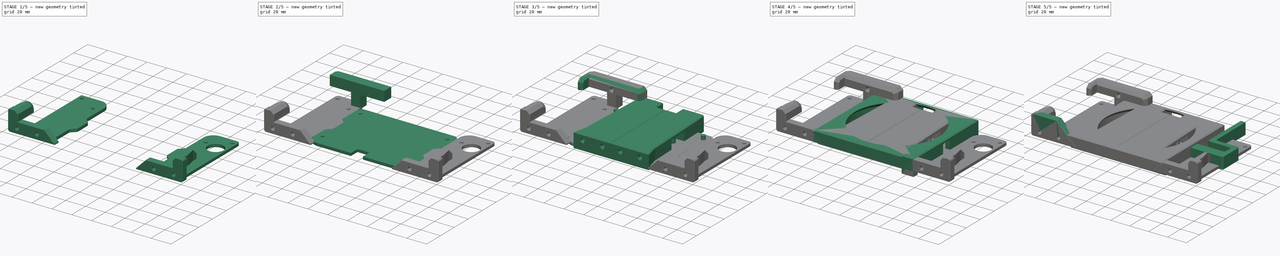
[diagram: build sequence overview — one tinted view per stage of 5, left to right]
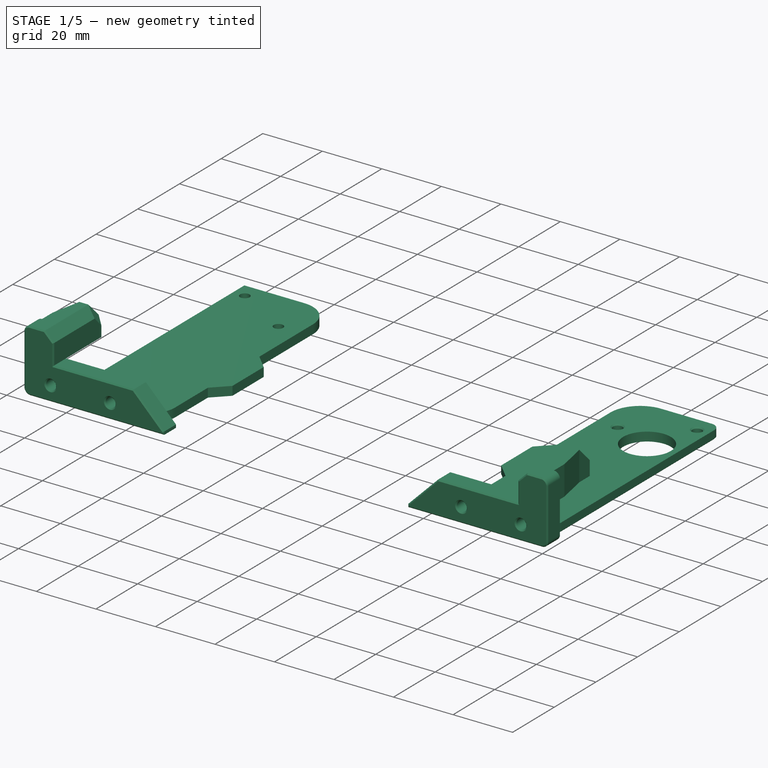
[diagram: stage 1 of 5 — iso view after this stage's code; geometry added in this stage tinted green]
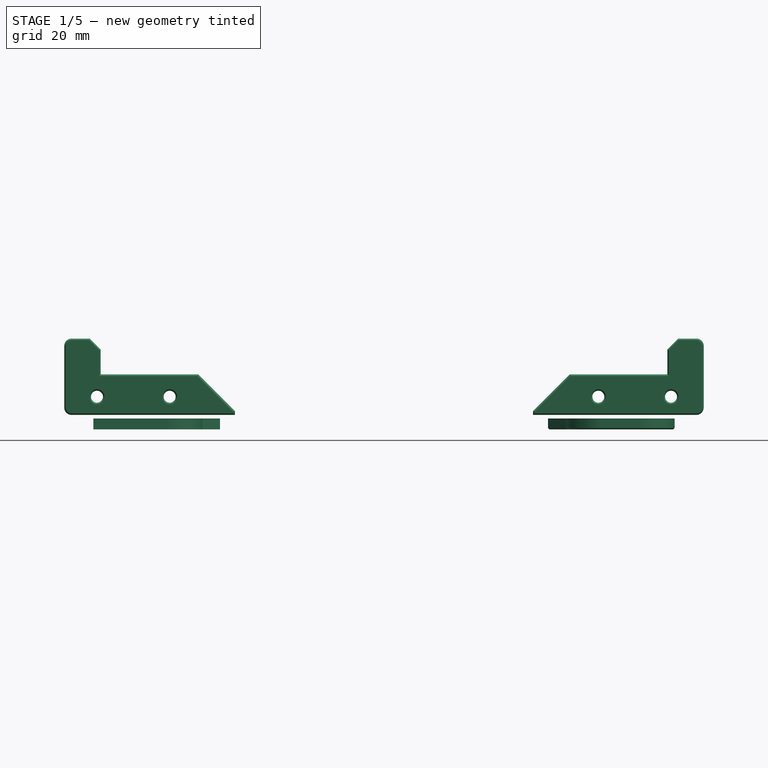
[diagram: stage 1 of 5 — front view after this stage's code; geometry added in this stage tinted green]
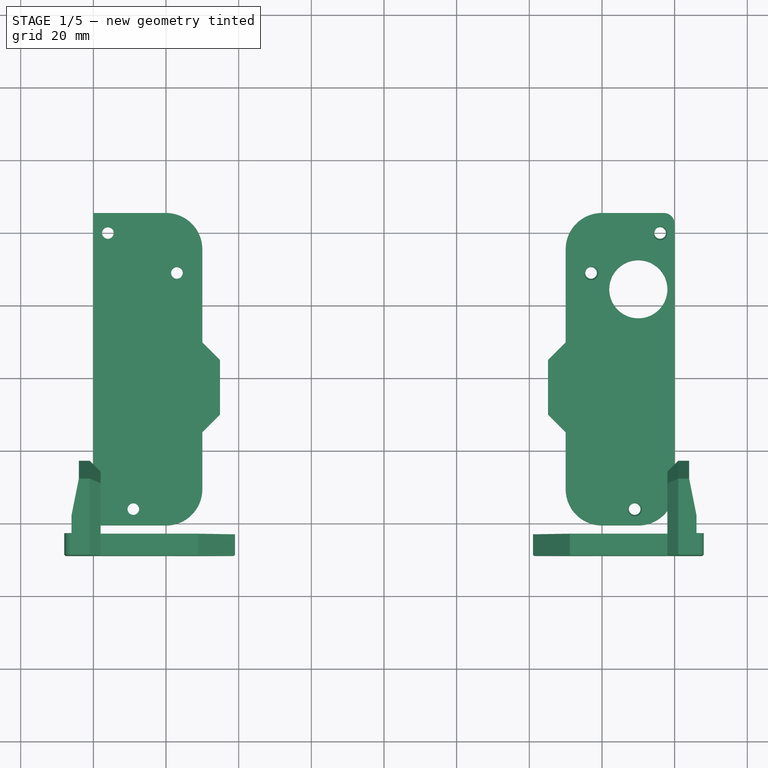
[diagram: stage 1 of 5 — top view after this stage's code; geometry added in this stage tinted green]
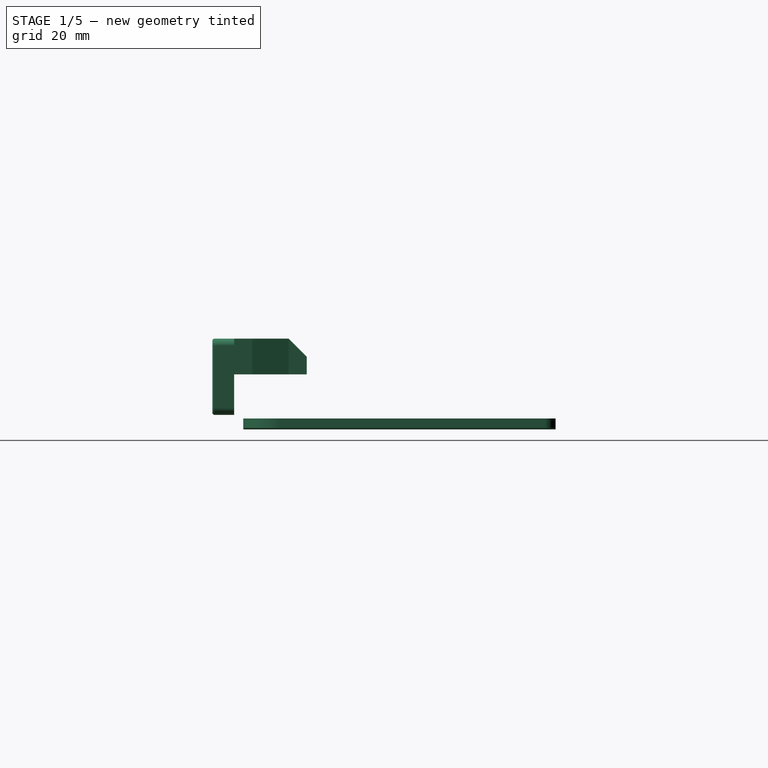
[diagram: stage 1 of 5 — right view after this stage's code; geometry added in this stage tinted green]
FCSTD DOCUMENT  (FreeCAD 0.19R24366 (Git))
Label: charger
License: Other
LicenseURL: GPL3
objects: Part::Box×34, Part::Chamfer×31, Part::Cylinder×21, Part::MultiFuse×17, Part::Cut×13, Sketcher::SketchObject×13, Part::Fillet×11, PartDesign::Pocket×11, PartDesign::Chamfer×6, PartDesign::Fillet×4, PartDesign::Body×3, PartDesign::Pad×2, Part::Feature×2, Part::MultiCommon×1, Spreadsheet::Sheet×1, PartDesign::FeatureBase×1, Part::Mirroring×1
note: 194 computed .brp shape members not serialized (recipe doc carries the construction recipe); baked Part::Feature solids carry a one-line shape summary decoded from their .brp

FEATURE [Part::Box] Box035  label="Cube035"
  AttacherType = Attacher::AttachEngine3D
  Height = 3
  Length = 30
  Placement = pos=(-80,-40.5,0) rot=(0,0,1;0rad)
  Width = 86
FEATURE [Part::Box] Box036  label="Cube036"
  AttacherType = Attacher::AttachEngine3D
  Height = 3
  Length = 30
  Placement = pos=(50,-40.5,0) rot=(0,0,1;0rad)
  Width = 86
FEATURE [Part::Cylinder] Cylinder018
  Angle = 360
  AttacherType = Attacher::AttachEngine3D
  Height = 10
  Placement = pos=(57,29,0) rot=(0,0,1;0rad)
  Radius = 1.6
FEATURE [Part::Cylinder] Cylinder019
  Angle = 360
  AttacherType = Attacher::AttachEngine3D
  Height = 10
  Placement = pos=(-57,29,0) rot=(0,0,1;0rad)
  Radius = 1.6
FEATURE [Part::Cylinder] Cylinder020
  Angle = 360
  AttacherType = Attacher::AttachEngine3D
  Height = 10
  Placement = pos=(-76,40,0) rot=(0,0,1;0rad)
  Radius = 1.6
FEATURE [Part::Cylinder] Cylinder021
  Angle = 360
  AttacherType = Attacher::AttachEngine3D
  Height = 10
  Placement = pos=(-69,-36,0) rot=(0,0,1;0rad)
  Radius = 1.6
FEATURE [Part::MultiFuse] Fusion002003013
  Shapes = -> [Cylinder021,Cylinder020,Cylinder019]
FEATURE [Part::Cut] Cut010
  Base = -> Box035
  Tool = -> Fusion002003013
FEATURE [Part::Cylinder] Cylinder022
  Angle = 360
  AttacherType = Attacher::AttachEngine3D
  Height = 10
  Placement = pos=(76,40,0) rot=(0,0,1;0rad)
  Radius = 1.6
FEATURE [Part::Cylinder] Cylinder023
  Angle = 360
  AttacherType = Attacher::AttachEngine3D
  Height = 10
  Placement = pos=(69,-36,0) rot=(0,0,1;0rad)
  Radius = 1.6
FEATURE [Part::MultiFuse] Fusion002003014
  Shapes = -> [Cylinder023,Cylinder022,Cylinder018]
FEATURE [Part::Cut] Cut011
  Base = -> Box036
  Refine = true
  Tool = -> Fusion002003014
FEATURE [Part::Box] Box037  label="Cube037"
  AttacherType = Attacher::AttachEngine3D
  Height = 3
  Length = 10
  Placement = pos=(-55.15,-14.85,0) rot=(0,0,1;0rad)
  Width = 24.7
FEATURE [Part::Box] Box038  label="Cube038"
  AttacherType = Attacher::AttachEngine3D
  Height = 3
  Length = 10
  Placement = pos=(45.15,-14.85,0) rot=(0,0,1;0rad)
  Width = 24.7
FEATURE [Part::Chamfer] Chamfer042
  Base = -> Box037
  Edges = 2 edges r=4.85: [Edge5,Edge7]
FEATURE [Part::MultiFuse] Fusion002003016
  Refine = true
  Shapes = -> [Cut010,Chamfer042]
FEATURE [Part::Chamfer] Chamfer043
  Base = -> Box038
  Edges = 2 edges r=4.85: [Edge1,Edge3]
FEATURE [Part::Fillet] Fillet007
  Base = -> Fusion002003016
  Edges = 2 edges r=10: [Edge6,Edge9]
FEATURE [Part::MultiFuse] Fusion002003017
  Refine = true
  Shapes = -> [Cut011,Chamfer043]
FEATURE [Part::Fillet] Fillet008
  Base = -> Fusion002003017
  Edges = 2 edges r=10: [Edge4,Edge15]
FEATURE [Part::Fillet] Fillet010
  Base = -> Fillet008
  Edges = 1 edges r=10: [Edge31]
FEATURE [Part::Fillet] Fillet012
  Base = -> Fillet010
  Edges = 1 edges r=3: [Edge23]
FEATURE [Part::Chamfer] Chamfer044
  Base = -> Fillet012
  Edges = 15 edges r=0.4: [Edge17,Edge19,Edge21,Edge23,Edge25,Edge27,Edge29,Edge32,Edge33,Edge35,Edge37,Edge39,Edge41,Edge43,Edge45]
FEATURE [Part::Chamfer] Chamfer047
  Base = -> Chamfer044
  Edges = 3 edges r=0.4: [Edge21,Edge22,Edge23]
FEATURE [Part::Cylinder] Cylinder024
  Angle = 360
  AttacherType = Attacher::AttachEngine3D
  Height = 10
  Placement = pos=(70,24.5,0) rot=(0,0,1;0rad)
  Radius = 8
FEATURE [Part::Cut] Cut013  label="right-drill"
  Base = -> Chamfer047
  Tool = -> Cylinder024
FEATURE [Part::Feature] Defeatured001  label="wing-cut-base"
  shape: bbox 47 x 26 x 21 mm, 20 faces (baked)
FEATURE [PartDesign::FeatureBase] BaseFeature
  BaseFeature = -> Defeatured001
FEATURE [Sketcher::SketchObject] Sketch012
  ExternalGeometry = -> [BaseFeature]
  FullyConstrained = true
  MapMode = 5
  Placement = pos=(0,-39,0) rot=(0,0.707107,0.707107;3.14159rad)
  Support = -> [BaseFeature]
  sketch-geometry (4):
    g0: LineSegment StartX=78 StartY=25 StartZ=0 EndX=51.15 EndY=25 EndZ=0
    g1: LineSegment StartX=51.15 StartY=25 StartZ=0 EndX=51.15 EndY=15.15 EndZ=0
    g2: LineSegment StartX=51.15 StartY=15.15 StartZ=0 EndX=78 EndY=15.15 EndZ=0
    g3: LineSegment StartX=78 StartY=15.15 StartZ=0 EndX=78 EndY=25 EndZ=0
  constraints (11):
    c: Coincident(g0,g1)
    c: Coincident(g1,g2)
    c: Coincident(g2,g3)
    c: Coincident(g3,g0)
    c: Horizontal(g0)
    c: Horizontal(g2)
    c: Vertical(g1)
    c: Vertical(g3)
    c: Coincident(g0,g-3)
    c: PointOnObject(g1,g-7)
    c: Horizontal(g-6,g1)
FEATURE [PartDesign::Pocket] Pocket010
  BaseFeature = -> BaseFeature
  Length = 5
  Length2 = 100
  Profile = -> Sketch012
  Refine = true
  Type = 1
FEATURE [PartDesign::Chamfer] Chamfer050
  Angle = 45
  Base = -> Pocket010 [Edge48,Edge36,Edge8]
  BaseFeature = -> Pocket010
  ChamferType = 0
  FlipDirection = false
  Size = 3
  Size2 = 1
  SupportTransform = false
FEATURE [PartDesign::Chamfer] Chamfer051
  Angle = 45
  Base = -> Chamfer050 [Face5]
  BaseFeature = -> Chamfer050
  ChamferType = 0
  FlipDirection = false
  Size = 0.4
  Size2 = 1
  SupportTransform = false
FEATURE [PartDesign::Body] Body002  label="wing-cut"
  BaseFeature = -> Defeatured001
  Group = -> [BaseFeature,Sketch012,Pocket010,Chamfer050,Chamfer051]
  Origin = -> Origin002
  Tip = -> Chamfer051
FEATURE [Part::Feature] Body002001  label="wing-cut001"
  shape: bbox 47 x 26 x 21 mm, 34 faces (baked)
FEATURE [Part::Mirroring] Part__Mirroring  label="wing-cut001 (Mirror #1)"
  Base = (0,0,0)
  Normal = (1,0,0)
  Source = -> Body002001
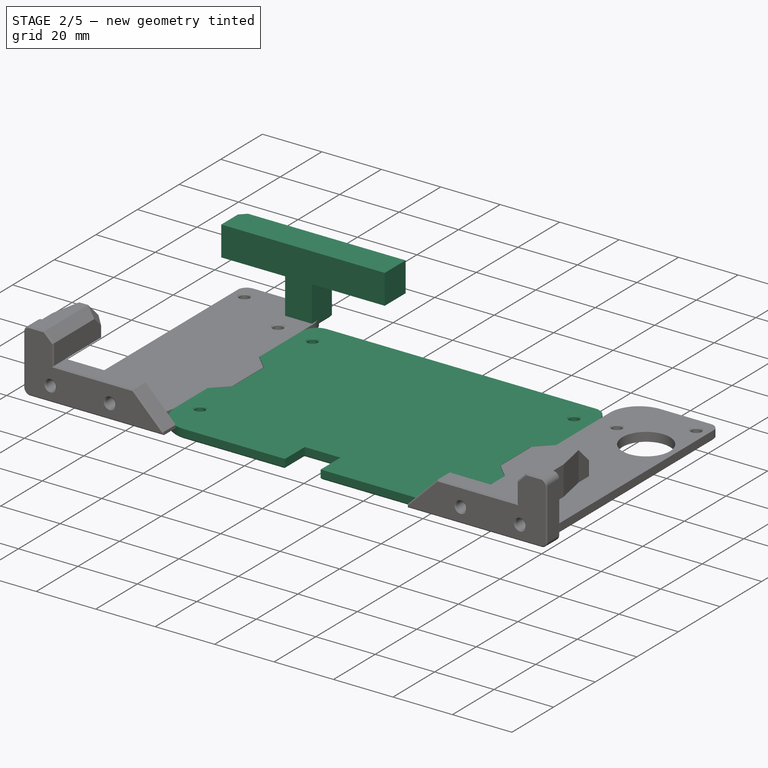
[diagram: stage 2 of 5 — iso view after this stage's code; geometry added in this stage tinted green]
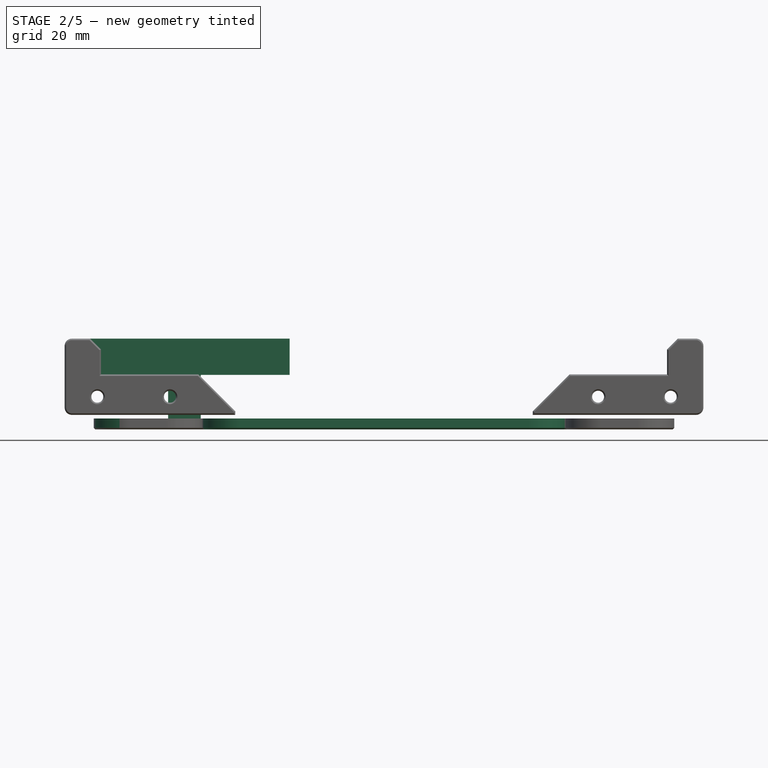
[diagram: stage 2 of 5 — front view after this stage's code; geometry added in this stage tinted green]
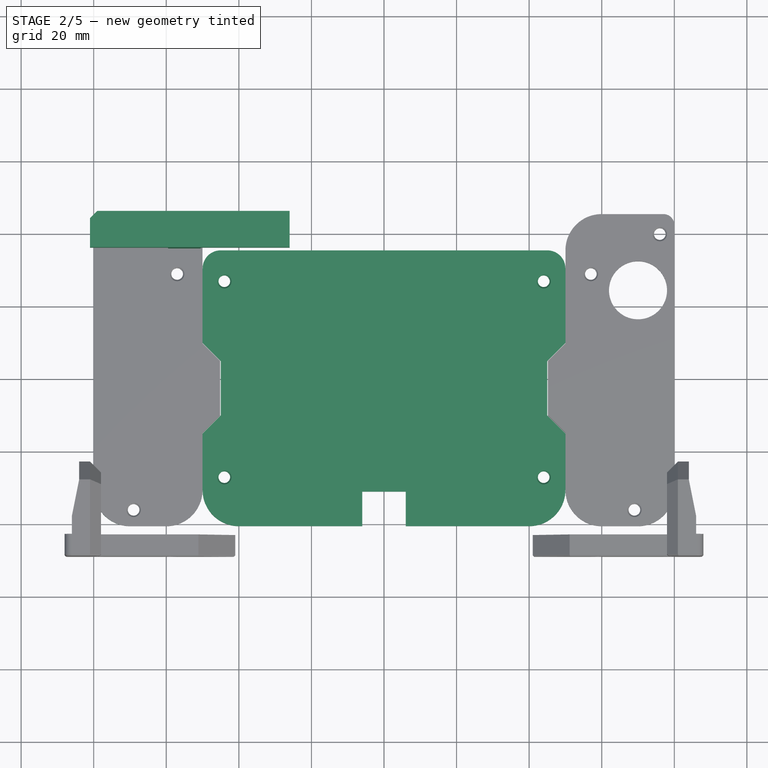
[diagram: stage 2 of 5 — top view after this stage's code; geometry added in this stage tinted green]
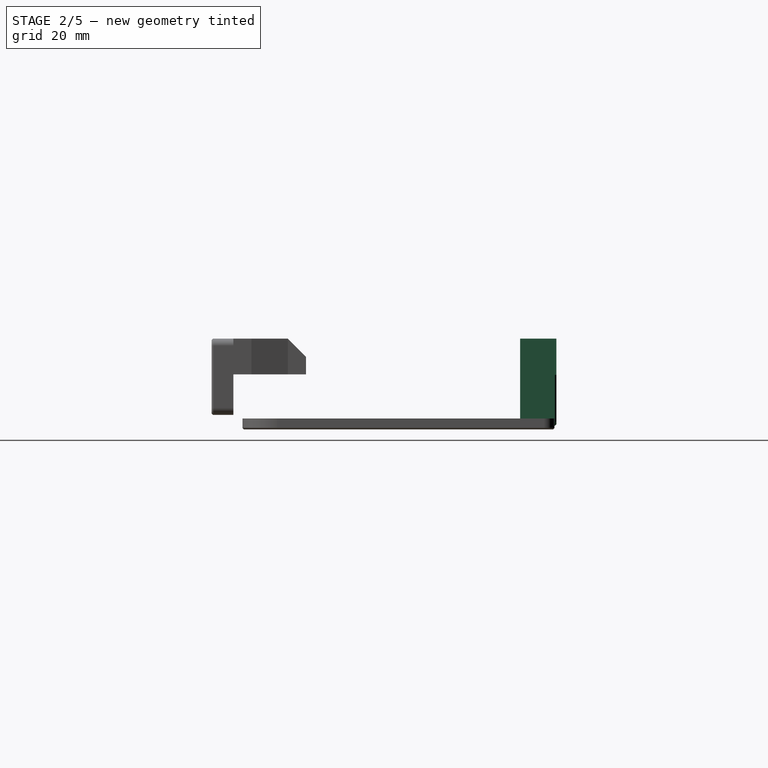
[diagram: stage 2 of 5 — right view after this stage's code; geometry added in this stage tinted green]
FEATURE [PartDesign::Body] Body001  label="right"
  Group = -> [Sketch001,Pad001,Fillet003,Chamfer007,Sketch003,Pocket001,Sketch004,Pocket002,Sketch006,Pocket004,Sketch008,Pocket006,Fillet005,Sketch009,Pocket007,Chamfer021,Sketch011,Pocket009,Fillet006]
  Origin = -> Origin001
  Placement = pos=(50,0,0) rot=(0,0,1;0rad)
  Tip = -> Fillet006
FEATURE [Part::Box] Box028  label="Cube028"
  AttacherType = Attacher::AttachEngine3D
  Height = 14
  Length = 9
  Placement = pos=(-59.5,36,1) rot=(0,0,1;0rad)
  Width = 10
FEATURE [Part::Box] Box030  label="Cube030"
  AttacherType = Attacher::AttachEngine3D
  Height = 10
  Length = 55
  Placement = pos=(-81,36,15) rot=(0,0,1;0rad)
  Width = 10
FEATURE [Part::Box] Box032  label="Cube032"
  AttacherType = Attacher::AttachEngine3D
  Height = 10
  Length = 3.5
  Placement = pos=(-57.5,37.5,0) rot=(0,0,1;0rad)
  Width = 6.5
FEATURE [Part::Chamfer] Chamfer035
  Base = -> Box030
  Edges = 1 edges r=2: [Edge3]
FEATURE [Part::Cut] Cut006
  Base = -> Box028
  Tool = -> Box032
FEATURE [Part::Chamfer] Chamfer038
  Base = -> Cut006
  Edges = 2 edges r=1: [Edge4,Edge12]
FEATURE [Part::Chamfer] Chamfer039
  Base = -> Chamfer038
  Edges = 9 edges r=0.4: [Edge3,Edge10,Edge14,Edge15,Edge16,Edge18,Edge19,Edge20,Edge21]
FEATURE [Part::Cylinder] Cylinder013
  Angle = 360
  AttacherType = Attacher::AttachEngine3D
  Height = 10
  Placement = pos=(-55,46,18) rot=(1,0,0;1.5708rad)
  Radius = 1.5
FEATURE [Part::Box] Box033  label="Cube033"
  AttacherType = Attacher::AttachEngine3D
  Height = 10
  Length = 12
  Placement = pos=(-6,-43,0) rot=(0,0,1;0rad)
  Width = 12
FEATURE [Part::Box] Box034  label="Cube034"
  AttacherType = Attacher::AttachEngine3D
  Height = 3
  Length = 100
  Placement = pos=(-50,-40.5,0) rot=(0,0,1;0rad)
  Width = 76
FEATURE [Part::Cut] Cut008
  Base = -> Box034
  Tool = -> Box033
FEATURE [Part::Cylinder] Cylinder014
  Angle = 360
  AttacherType = Attacher::AttachEngine3D
  Height = 10
  Placement = pos=(-44,-27,0) rot=(0,0,1;0rad)
  Radius = 1.6
FEATURE [Part::Cylinder] Cylinder015
  Angle = 360
  AttacherType = Attacher::AttachEngine3D
  Height = 10
  Placement = pos=(44,-27,0) rot=(0,0,1;0rad)
  Radius = 1.6
FEATURE [Part::Cylinder] Cylinder016
  Angle = 360
  AttacherType = Attacher::AttachEngine3D
  Height = 10
  Placement = pos=(44,27,0) rot=(0,0,1;0rad)
  Radius = 1.6
FEATURE [Part::Cylinder] Cylinder017
  Angle = 360
  AttacherType = Attacher::AttachEngine3D
  Height = 10
  Placement = pos=(-44,27,0) rot=(0,0,1;0rad)
  Radius = 1.6
FEATURE [Part::MultiFuse] Fusion002003012
  Shapes = -> [Cylinder017,Cylinder016,Cylinder015,Cylinder014]
FEATURE [Part::Cut] Cut009
  Base = -> Cut008
  Tool = -> Fusion002003012
FEATURE [Part::Box] Box039  label="Cube039"
  AttacherType = Attacher::AttachEngine3D
  Height = 3
  Length = 10
  Placement = pos=(45,-15,0) rot=(0,0,1;0rad)
  Width = 25
FEATURE [Part::Box] Box040  label="Cube040"
  AttacherType = Attacher::AttachEngine3D
  Height = 3
  Length = 10
  Placement = pos=(-55,-15,0) rot=(0,0,1;0rad)
  Width = 25
FEATURE [Part::MultiFuse] Fusion002003015
  Shapes = -> [Box040,Box039]
FEATURE [Part::Chamfer] Chamfer041
  Base = -> Fusion002003015
  Edges = 4 edges r=5: [Edge5,Edge7,Edge13,Edge15]
FEATURE [Part::Cut] Cut012
  Base = -> Cut009
  Tool = -> Chamfer041
FEATURE [Part::Fillet] Fillet009
  Base = -> Fillet007
  Edges = 1 edges r=10: [Edge2]
FEATURE [Part::Fillet] Fillet011
  Base = -> Fillet009
  Edges = 1 edges r=3: [Edge33]
FEATURE [Part::Fillet] Fillet013
  Base = -> Cut012
  Edges = 2 edges r=10: [Edge4,Edge50]
FEATURE [Part::Fillet] Fillet014
  Base = -> Fillet013
  Edges = 2 edges r=5: [Edge58,Edge60]
FEATURE [Part::Chamfer] Chamfer045
  Base = -> Fillet011
  Edges = 15 edges r=0.4: [Edge1,Edge2,Edge3,Edge4,Edge5,Edge6,Edge7,Edge8,Edge9,Edge10,Edge11,Edge12,Edge13,Edge14,Edge15]
FEATURE [Part::Chamfer] Chamfer046
  Base = -> Fillet014
  Edges = 24 edges r=0.4: [Edge26,Edge28,Edge30,Edge32,Edge35,Edge36,Edge38,Edge41,Edge43,Edge44,Edge46,Edge49,Edge50,Edge52,Edge55,Edge57,Edge59,Edge60,Edge63,Edge64,Edge66,Edge68,Edge70,Edge72]
FEATURE [Part::Chamfer] Chamfer048  label="centr-drill"
  Base = -> Chamfer046
  Edges = 4 edges r=0.4: [Edge29,Edge30,Edge31,Edge32]
FEATURE [Part::Chamfer] Chamfer049  label="left-drill"
  Base = -> Chamfer045
  Edges = 3 edges r=0.4: [Edge71,Edge73,Edge75]
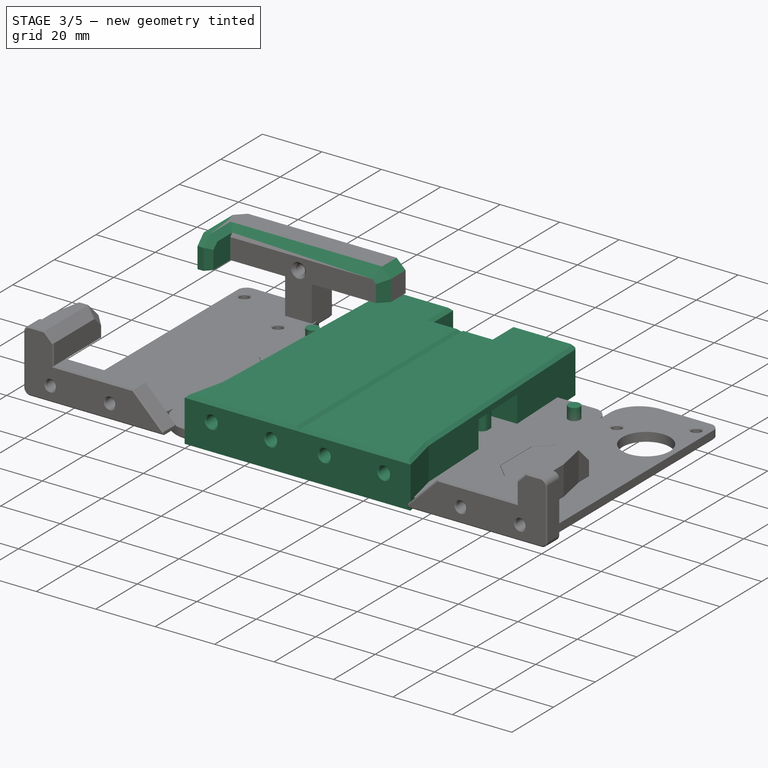
[diagram: stage 3 of 5 — iso view after this stage's code; geometry added in this stage tinted green]
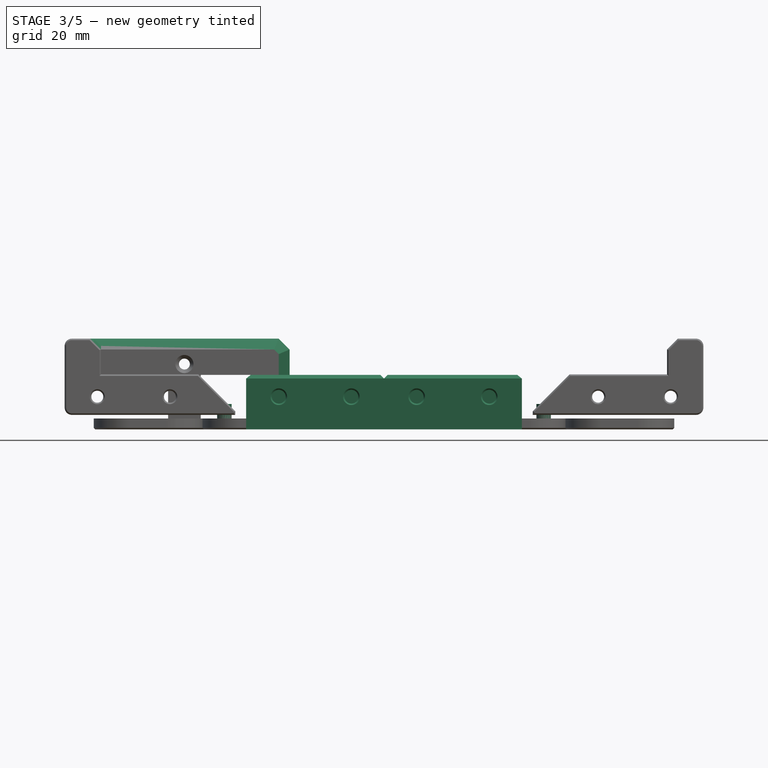
[diagram: stage 3 of 5 — front view after this stage's code; geometry added in this stage tinted green]
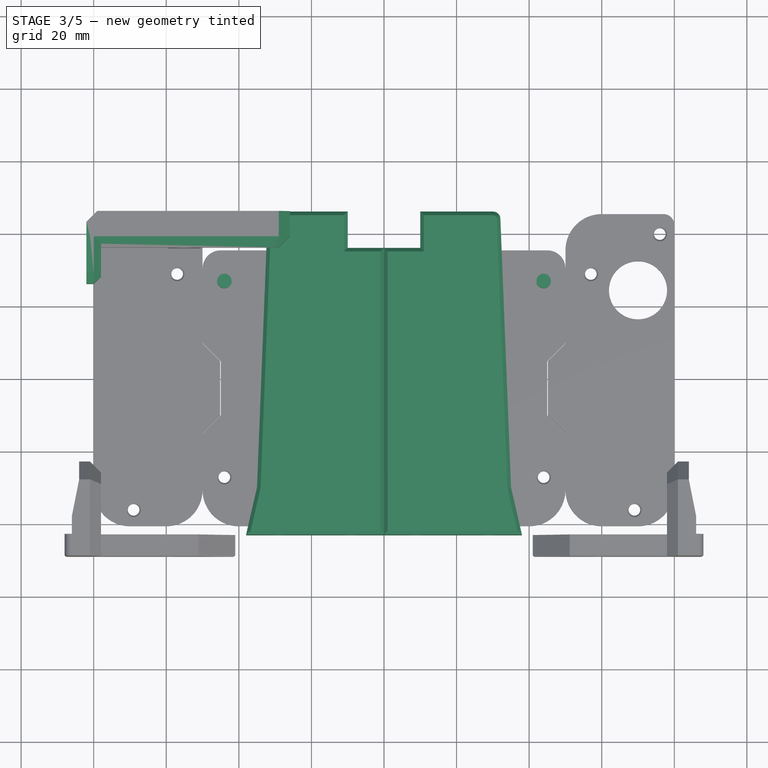
[diagram: stage 3 of 5 — top view after this stage's code; geometry added in this stage tinted green]
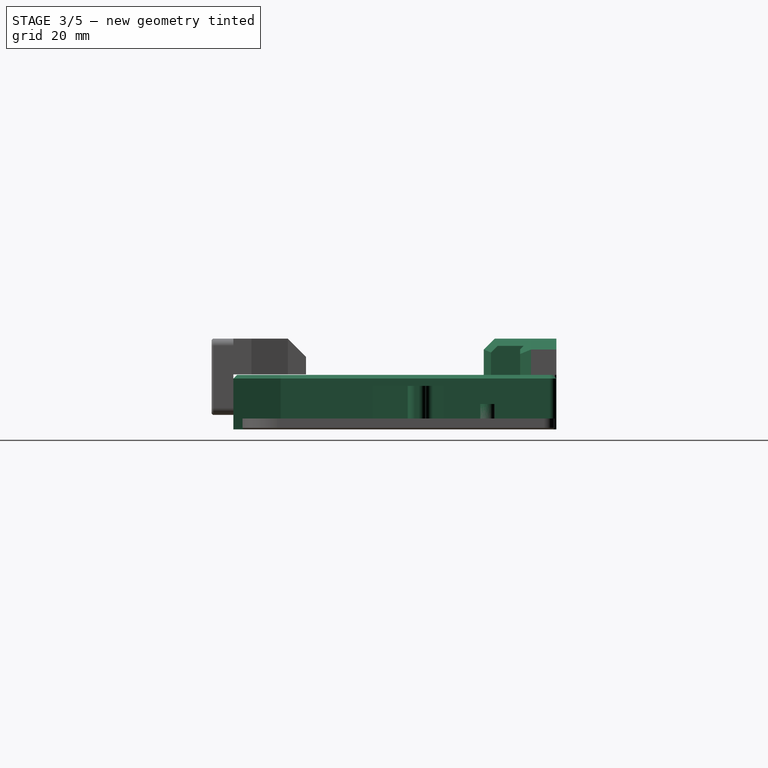
[diagram: stage 3 of 5 — right view after this stage's code; geometry added in this stage tinted green]
FEATURE [Sketcher::SketchObject] Sketch
  FullyConstrained = true
  MapMode = 5
  Support = -> [XY_Plane]
  sketch-geometry (8):
    g0: LineSegment StartX=0 StartY=36 StartZ=0 EndX=0 EndY=-43 EndZ=0
    g1: LineSegment StartX=0 StartY=-43 StartZ=0 EndX=-38 EndY=-43 EndZ=0
    g2: LineSegment StartX=0 StartY=-30 StartZ=0 EndX=-35 EndY=-30 EndZ=0
    g3: LineSegment StartX=-38 StartY=-43 StartZ=0 EndX=-35 EndY=-30 EndZ=0
    g4: LineSegment StartX=-35 StartY=-30 StartZ=0 EndX=-32 EndY=46 EndZ=0
    g5: LineSegment StartX=-32 StartY=46 StartZ=0 EndX=-10 EndY=46 EndZ=0
    g6: LineSegment StartX=-10 StartY=46 StartZ=0 EndX=-10 EndY=36 EndZ=0
    g7: LineSegment StartX=-10 StartY=36 StartZ=0 EndX=0 EndY=36 EndZ=0
  constraints (24):
    c: PointOnObject(g0,g-2)
    c: PointOnObject(g0,g-2)
    c: Coincident(g0,g1)
    c: Horizontal(g1)
    c: DistanceY(g-1,g0) = 36
    c: DistanceY(g0,g-1) = 43
    c: DistanceX(g4,g0) = 32
    c: DistanceX(g1,g1) = 38
    c: PointOnObject(g2,g0)
    c: Horizontal(g2)
    c: DistanceY(g0,g2) = 13
    c: Coincident(g3,g1)
    c: Coincident(g3,g2)
    c: Coincident(g4,g3)
    c: DistanceX(g3,g2) = 35
    c: Coincident(g5,g4)
    c: Horizontal(g5)
    c: Coincident(g6,g5)
    c: Vertical(g6)
    c: Coincident(g7,g6)
    c: Coincident(g7,g0)
    c: Horizontal(g7)
    c: DistanceX(g7,g7) = 10
    c: DistanceY(g6,g6) = 10
FEATURE [PartDesign::Pad] Pad
  Direction = (1,1,1)
  Length = 15
  Length2 = 100
  Profile = -> Sketch
  Type = 0
FEATURE [PartDesign::Fillet] Fillet002
  Base = -> Pad [Edge11]
  BaseFeature = -> Pad
  Radius = 2
  SupportTransform = false
FEATURE [PartDesign::Chamfer] Chamfer003
  Angle = 45
  Base = -> Fillet002 [Edge17,Edge4,Edge15,Edge19,Edge20,Edge18,Edge16,Edge13]
  BaseFeature = -> Fillet002
  ChamferType = 0
  FlipDirection = false
  Size = 1
  Size2 = 1
  SupportTransform = false
FEATURE [Sketcher::SketchObject] Sketch001
  FullyConstrained = true
  MapMode = 5
  Support = -> [XY_Plane001]
  sketch-geometry (7):
    g0: LineSegment StartX=0 StartY=36 StartZ=0 EndX=0 EndY=-43 EndZ=0
    g1: LineSegment StartX=0 StartY=-43 StartZ=0 EndX=38 EndY=-43 EndZ=0
    g2: LineSegment StartX=38 StartY=-43 StartZ=0 EndX=35 EndY=-30 EndZ=0
    g3: LineSegment StartX=35 StartY=-30 StartZ=0 EndX=32 EndY=46 EndZ=0
    g4: LineSegment StartX=32 StartY=46 StartZ=0 EndX=10 EndY=46 EndZ=0
    g5: LineSegment StartX=10 StartY=46 StartZ=0 EndX=10 EndY=36 EndZ=0
    g6: LineSegment StartX=10 StartY=36 StartZ=0 EndX=0 EndY=36 EndZ=0
  constraints (21):
    c: PointOnObject(g0,g-2)
    c: PointOnObject(g0,g-2)
    c: Coincident(g0,g1)
    c: Horizontal(g1)
    c: Coincident(g1,g2)
    c: Coincident(g2,g3)
    c: Coincident(g3,g4)
    c: Horizontal(g4)
    c: Coincident(g4,g5)
    c: Vertical(g5)
    c: Coincident(g5,g6)
    c: Coincident(g6,g0)
    c: Horizontal(g6)
    c: DistanceY(g-1,g0) = 36
    c: DistanceY(g0,g-1) = 43
    c: DistanceX(g1,g1) = 38
    c: DistanceX(g-1,g2) = 35
    c: DistanceY(g1,g2) = 13
    c: DistanceY(g5,g5) = 10
    c: DistanceX(g6,g6) = 10
    c: DistanceX(g-1,g3) = 32
FEATURE [PartDesign::Pad] Pad001
  Direction = (1,1,1)
  Length = 15
  Length2 = 100
  Profile = -> Sketch001
  Type = 0
FEATURE [PartDesign::Fillet] Fillet003
  Base = -> Pad001 [Edge11]
  BaseFeature = -> Pad001
  Radius = 2
  SupportTransform = false
FEATURE [PartDesign::Chamfer] Chamfer007
  Angle = 45
  Base = -> Fillet003 [Face5]
  BaseFeature = -> Fillet003
  ChamferType = 0
  FlipDirection = false
  Size = 1
  Size2 = 1
  SupportTransform = false
FEATURE [Sketcher::SketchObject] Sketch002
  FullyConstrained = true
  MapMode = 5
  Placement = pos=(0,-43,0) rot=(1,0,0;1.5708rad)
  Support = -> [Chamfer003]
  sketch-geometry (2):
    g0: Circle CenterX=-29 CenterY=9 CenterZ=0 NormalX=0 NormalY=0 NormalZ=1 AngleXU=0 Radius=1.9
    g1: Circle CenterX=-9 CenterY=9 CenterZ=0 NormalX=0 NormalY=0 NormalZ=1 AngleXU=0 Radius=1.9
  constraints (6):
    c: Radius(g0) = 1.9
    c: Radius(g1) = 1.9
    c: DistanceY(g-1,g1) = 9
    c: DistanceX(g1,g-1) = 9
    c: DistanceX(g0,g1) = 20
    c: Horizontal(g0,g1)
FEATURE [PartDesign::Pocket] Pocket
  BaseFeature = -> Chamfer003
  Length = 7
  Length2 = 100
  Profile = -> Sketch002
  Type = 0
FEATURE [Sketcher::SketchObject] Sketch003
  FullyConstrained = true
  MapMode = 5
  Placement = pos=(0,-43,0) rot=(1,0,0;1.5708rad)
  Support = -> [Chamfer007]
  sketch-geometry (2):
    g0: Circle CenterX=9 CenterY=9 CenterZ=0 NormalX=0 NormalY=0 NormalZ=1 AngleXU=0 Radius=1.9
    g1: Circle CenterX=29 CenterY=9 CenterZ=0 NormalX=0 NormalY=0 NormalZ=1 AngleXU=0 Radius=1.9
  constraints (6):
    c: Horizontal(g0,g1)
    c: DistanceX(g-1,g0) = 9
    c: DistanceX(g0,g1) = 20
    c: DistanceY(g-1,g0) = 9
    c: Radius(g0) = 1.9
    c: Radius(g1) = 1.9
FEATURE [PartDesign::Pocket] Pocket001
  BaseFeature = -> Chamfer007
  Length = 7
  Length2 = 100
  Profile = -> Sketch003
  Type = 0
FEATURE [Part::Cylinder] Cylinder011
  Angle = 360
  AttacherType = Attacher::AttachEngine3D
  Height = 7
  Placement = pos=(-44,27,0) rot=(0,0,1;0rad)
  Radius = 2
FEATURE [Part::Cylinder] Cylinder012
  Angle = 360
  AttacherType = Attacher::AttachEngine3D
  Height = 7
  Placement = pos=(44,27,0) rot=(0,0,1;0rad)
  Radius = 2
FEATURE [Sketcher::SketchObject] Sketch004
  FullyConstrained = true
  MapMode = 5
  Placement = pos=(0,0,0) rot=(1,0,0;3.14159rad)
  Support = -> [Pocket001]
  sketch-geometry (4):
    g0: LineSegment StartX=12 StartY=-44 StartZ=0 EndX=15.5 EndY=-44 EndZ=0
    g1: LineSegment StartX=15.5 StartY=-44 StartZ=0 EndX=15.5 EndY=-37.5 EndZ=0
    g2: LineSegment StartX=15.5 StartY=-37.5 StartZ=0 EndX=12 EndY=-37.5 EndZ=0
    g3: LineSegment StartX=12 StartY=-37.5 StartZ=0 EndX=12 EndY=-44 EndZ=0
  constraints (12):
    c: Coincident(g0,g1)
    c: Coincident(g1,g2)
    c: Coincident(g2,g3)
    c: Coincident(g3,g0)
    c: Horizontal(g0)
    c: Horizontal(g2)
    c: Vertical(g1)
    c: Vertical(g3)
    c: DistanceY(g3,g3) = 6.5
    c: DistanceX(g2,g2) = 3.5
    c: DistanceX(g-1,g0) = 12
    c: DistanceY(g2,g-1) = 37.5
FEATURE [PartDesign::Pocket] Pocket002
  BaseFeature = -> Pocket001
  Length = 10
  Length2 = 100
  Profile = -> Sketch004
  Type = 0
FEATURE [Sketcher::SketchObject] Sketch005
  FullyConstrained = true
  MapMode = 5
  Placement = pos=(0,0,0) rot=(1,0,0;3.14159rad)
  Support = -> [Pocket]
  sketch-geometry (4):
    g0: LineSegment StartX=-12.05 StartY=-44.08 StartZ=0 EndX=-15.55 EndY=-44.08 EndZ=0
    g1: LineSegment StartX=-15.55 StartY=-44.08 StartZ=0 EndX=-15.55 EndY=-37.58 EndZ=0
    g2: LineSegment StartX=-15.55 StartY=-37.58 StartZ=0 EndX=-12.05 EndY=-37.58 EndZ=0
    g3: LineSegment StartX=-12.05 StartY=-37.58 StartZ=0 EndX=-12.05 EndY=-44.08 EndZ=0
  constraints (12):
    c: Coincident(g0,g1)
    c: Coincident(g1,g2)
    c: Coincident(g2,g3)
    c: Coincident(g3,g0)
    c: Horizontal(g0)
    c: Horizontal(g2)
    c: Vertical(g1)
    c: Vertical(g3)
    c: DistanceY(g3,g3) = 6.5
    c: DistanceX(g2,g2) = 3.5
    c: DistanceX(g2,g-1) = 12.05
    c: DistanceY(g2,g-1) = 37.58
FEATURE [PartDesign::Pocket] Pocket003
  BaseFeature = -> Pocket
  Length = 10
  Length2 = 100
  Profile = -> Sketch005
  Type = 0
FEATURE [Sketcher::SketchObject] Sketch006
  FullyConstrained = true
  MapMode = 5
  Placement = pos=(0,0,0) rot=(1,0,0;3.14159rad)
  Support = -> [Pocket002]
  sketch-geometry (3):
    g0: Circle CenterX=19 CenterY=36 CenterZ=0 NormalX=0 NormalY=0 NormalZ=1 AngleXU=0 Radius=1.95
    g1: Circle CenterX=7 CenterY=-29 CenterZ=0 NormalX=0 NormalY=0 NormalZ=1 AngleXU=0 Radius=1.95
    g2: Circle CenterX=26 CenterY=-40 CenterZ=0 NormalX=0 NormalY=0 NormalZ=1 AngleXU=0 Radius=1.95
  constraints (9):
    c: Radius(g1) = 1.95
    c: Radius(g2) = 1.95
    c: Radius(g0) = 1.95
    c: DistanceX(g-1,g0) = 19
    c: DistanceX(g-1,g1) = 7
    c: DistanceX(g-1,g2) = 26
    c: DistanceY(g1,g-1) = 29
    c: DistanceY(g2,g-1) = 40
    c: DistanceY(g-1,g0) = 36
FEATURE [PartDesign::Pocket] Pocket004
  BaseFeature = -> Pocket002
  Length = 7
  Length2 = 100
  Profile = -> Sketch006
  Type = 0
FEATURE [Sketcher::SketchObject] Sketch007
  FullyConstrained = true
  MapMode = 5
  Placement = pos=(0,0,0) rot=(1,0,0;3.14159rad)
  Support = -> [Pocket003]
  sketch-geometry (3):
    g0: Circle CenterX=-19 CenterY=36 CenterZ=0 NormalX=0 NormalY=0 NormalZ=1 AngleXU=0 Radius=1.95
    g1: Circle CenterX=-26 CenterY=-40 CenterZ=0 NormalX=0 NormalY=0 NormalZ=1 AngleXU=0 Radius=1.95
    g2: Circle CenterX=-7 CenterY=-29 CenterZ=0 NormalX=0 NormalY=0 NormalZ=1 AngleXU=0 Radius=1.95
  constraints (9):
    c: Radius(g0) = 1.95
    c: Radius(g2) = 1.95
    c: Radius(g1) = 1.95
    c: DistanceX(g2,g-1) = 7
    c: DistanceX(g1,g-1) = 26
    c: DistanceX(g0,g-1) = 19
    c: DistanceY(g-1,g0) = 36
    c: DistanceY(g2,g-1) = 29
    c: DistanceY(g1,g-1) = 40
FEATURE [PartDesign::Pocket] Pocket005
  BaseFeature = -> Pocket003
  Length = 7
  Length2 = 100
  Profile = -> Sketch007
  Type = 0
FEATURE [Sketcher::SketchObject] Sketch008
  FullyConstrained = true
  MapMode = 5
  Placement = pos=(0,0,0) rot=(1,0,0;3.14159rad)
  Support = -> [Pocket004]
  sketch-geometry (10):
    g0: LineSegment StartX=0 StartY=5 StartZ=0 EndX=0 EndY=-5 EndZ=0
    g1: LineSegment StartX=0 StartY=5 StartZ=0 EndX=34 EndY=5 EndZ=0
    g2: LineSegment StartX=34 StartY=5 StartZ=0 EndX=34 EndY=-15 EndZ=0
    g3: LineSegment StartX=0 StartY=-5 StartZ=0 EndX=29 EndY=-5 EndZ=0
    g4: LineSegment StartX=29 StartY=-5 StartZ=0 EndX=29 EndY=-10 EndZ=0
    g5: LineSegment StartX=29 StartY=-10 StartZ=0 EndX=17.5 EndY=-10 EndZ=0
    g6: LineSegment StartX=34 StartY=-15 StartZ=0 EndX=22.5 EndY=-15 EndZ=0
    g7: LineSegment StartX=22.5 StartY=-15 StartZ=0 EndX=22.5 EndY=-17.0807 EndZ=0
    g8: LineSegment StartX=17.5 StartY=-10 StartZ=0 EndX=17.5 EndY=-17.0807 EndZ=0
    g9: ArcOfCircle CenterX=20 CenterY=-24.68 CenterZ=0 NormalX=0 NormalY=0 NormalZ=1 AngleXU=0 Radius=8 StartAngle=1.88862 EndAngle=7.53616
  constraints (31):
    c: PointOnObject(g0,g-2)
    c: Vertical(g0)
    c: Coincident(g1,g0)
    c: Horizontal(g1)
    c: Coincident(g2,g1)
    c: Vertical(g2)
    c: Coincident(g3,g0)
    c: Horizontal(g3)
    c: Coincident(g4,g3)
    c: Vertical(g4)
    c: Coincident(g5,g4)
    c: Horizontal(g5)
    c: Coincident(g6,g2)
    c: Horizontal(g6)
    c: Coincident(g7,g6)
    c: Vertical(g7)
    c: Coincident(g8,g5)
    c: DistanceY(g0,g0) = 10
    c: DistanceY(g-1,g0) = 5
    c: DistanceX(g1,g1) = 34
    c: DistanceX(g3,g3) = 29
    c: DistanceY(g2,g2) = 20
    c: DistanceY(g4,g4) = 5
    c: Radius(g9) = 8
    c: Vertical(g8)
    c: DistanceX(g0,g9) = 20
    c: DistanceY(g9,g0) = 19.68
    c: DistanceX(g8,g9) = 2.5
    c: DistanceX(g8,g7) = 5
    c: Coincident(g9,g8)
    c: Coincident(g9,g7)
FEATURE [PartDesign::Pocket] Pocket006
  BaseFeature = -> Pocket004
  Length = 12
  Length2 = 100
  Profile = -> Sketch008
  Type = 0
FEATURE [PartDesign::Fillet] Fillet005
  Base = -> Pocket006 [Edge75,Edge74,Edge73,Edge72,Edge32]
  BaseFeature = -> Pocket006
  Radius = 2
  SupportTransform = false
FEATURE [Sketcher::SketchObject] Sketch009
  FullyConstrained = true
  MapMode = 5
  Placement = pos=(0,0,0) rot=(1,0,0;3.14159rad)
  Support = -> [Fillet005]
  sketch-geometry (4):
    g0: LineSegment StartX=5 StartY=10 StartZ=0 EndX=29 EndY=10 EndZ=0
    g1: LineSegment StartX=29 StartY=10 StartZ=0 EndX=29 EndY=29 EndZ=0
    g2: LineSegment StartX=29 StartY=29 StartZ=0 EndX=5 EndY=29 EndZ=0
    g3: LineSegment StartX=5 StartY=29 StartZ=0 EndX=5 EndY=10 EndZ=0
  constraints (12):
    c: Coincident(g0,g1)
    c: Coincident(g1,g2)
    c: Coincident(g2,g3)
    c: Coincident(g3,g0)
    c: Horizontal(g0)
    c: Horizontal(g2)
    c: Vertical(g1)
    c: Vertical(g3)
    c: DistanceX(g2,g2) = 24
    c: DistanceX(g-1,g0) = 5
    c: DistanceY(g3,g3) = 19
    c: DistanceY(g-1,g0) = 10
FEATURE [PartDesign::Pocket] Pocket007
  BaseFeature = -> Fillet005
  Length = 10
  Length2 = 100
  Profile = -> Sketch009
  Type = 0
FEATURE [Sketcher::SketchObject] Sketch010
  FullyConstrained = true
  MapMode = 5
  Placement = pos=(0,0,0) rot=(1,0,0;3.14159rad)
  Support = -> [Pocket005]
  sketch-geometry (12):
    g0: LineSegment StartX=-5 StartY=29 StartZ=0 EndX=-29 EndY=29 EndZ=0
    g1: LineSegment StartX=-29 StartY=29 StartZ=0 EndX=-29 EndY=0 EndZ=0
    g2: LineSegment StartX=-29 StartY=0 StartZ=0 EndX=-5 EndY=0 EndZ=0
    g3: LineSegment StartX=-5 StartY=0 StartZ=0 EndX=-5 EndY=29 EndZ=0
    g4: LineSegment StartX=-5 StartY=-5 StartZ=0 EndX=-28 EndY=-5 EndZ=0
    g5: LineSegment StartX=-28 StartY=-5 StartZ=0 EndX=-28 EndY=-22 EndZ=0
    g6: LineSegment StartX=-28 StartY=-22 StartZ=0 EndX=-5 EndY=-22 EndZ=0
    g7: LineSegment StartX=-5 StartY=-22 StartZ=0 EndX=-5 EndY=-5 EndZ=0
    g8: LineSegment StartX=-14 StartY=-27 StartZ=0 EndX=-27 EndY=-27 EndZ=0
    g9: LineSegment StartX=-27 StartY=-27 StartZ=0 EndX=-27 EndY=-33 EndZ=0
    g10: LineSegment StartX=-27 StartY=-33 StartZ=0 EndX=-14 EndY=-33 EndZ=0
    g11: LineSegment StartX=-14 StartY=-33 StartZ=0 EndX=-14 EndY=-27 EndZ=0
  constraints (36):
    c: Coincident(g0,g1)
    c: Coincident(g1,g2)
    c: Coincident(g2,g3)
    c: Coincident(g3,g0)
    c: Horizontal(g0)
    c: Horizontal(g2)
    c: Vertical(g1)
    c: Vertical(g3)
    c: Coincident(g4,g5)
    c: Coincident(g5,g6)
    c: Coincident(g6,g7)
    c: Coincident(g7,g4)
    c: Horizontal(g4)
    c: Horizontal(g6)
    c: Vertical(g5)
    c: Vertical(g7)
    c: DistanceX(g2,g-1) = 5
    c: DistanceX(g4,g-1) = 5
    c: DistanceX(g0,g0) = 24
    c: DistanceY(g3,g3) = 29
    c: DistanceY(g2,g-1) = 0
    c: DistanceY(g4,g-1) = 5
    c: DistanceX(g4,g4) = 23
    c: DistanceY(g7,g7) = 17
    c: Coincident(g8,g9)
    c: Coincident(g9,g10)
    c: Coincident(g10,g11)
    c: Coincident(g11,g8)
    c: Horizontal(g8)
    c: Horizontal(g10)
    c: Vertical(g9)
    c: Vertical(g11)
    c: DistanceY(g8,g6) = 5
    c: DistanceX(g8,g8) = 13
    c: DistanceX(g8,g-1) = 14
    c: DistanceY(g11,g11) = 6
FEATURE [PartDesign::Pocket] Pocket008
  BaseFeature = -> Pocket005
  Length = 10
  Length2 = 100
  Profile = -> Sketch010
  Type = 0
FEATURE [PartDesign::Chamfer] Chamfer020
  Angle = 45
  Base = -> Pocket008 [Edge17,Edge35,Edge26,Edge30,Edge28,Edge27,Edge29,Edge52,Edge51]
  BaseFeature = -> Pocket008
  ChamferType = 0
  FlipDirection = false
  Size = 0.4
  Size2 = 1
  SupportTransform = false
FEATURE [PartDesign::Body] Body  label="left"
  Group = -> [Sketch,Pad,Fillet002,Chamfer003,Sketch002,Pocket,Sketch005,Pocket003,Sketch007,Pocket005,Sketch010,Pocket008,Chamfer020]
  Origin = -> Origin
  Placement = pos=(-50,0,0) rot=(0,0,1;0rad)
  Tip = -> Chamfer020
FEATURE [PartDesign::Chamfer] Chamfer021
  Angle = 45
  Base = -> Pocket007 [Edge61,Edge62,Edge63,Edge65,Edge64,Edge66,Edge74,Edge84,Edge85]
  BaseFeature = -> Pocket007
  ChamferType = 0
  FlipDirection = false
  Size = 0.4
  Size2 = 1
  SupportTransform = false
FEATURE [Sketcher::SketchObject] Sketch011
  FullyConstrained = true
  MapMode = 5
  Placement = pos=(0,0,0) rot=(1,0,0;3.14159rad)
  Support = -> [Chamfer021]
  sketch-geometry (4):
    g0: LineSegment StartX=3 StartY=-10 StartZ=0 EndX=14 EndY=-10 EndZ=0
    g1: LineSegment StartX=14 StartY=-10 StartZ=0 EndX=14 EndY=10 EndZ=0
    g2: LineSegment StartX=14 StartY=10 StartZ=0 EndX=3 EndY=10 EndZ=0
    g3: LineSegment StartX=3 StartY=10 StartZ=0 EndX=3 EndY=-10 EndZ=0
  constraints (12):
    c: Coincident(g0,g1)
    c: Coincident(g1,g2)
    c: Coincident(g2,g3)
    c: Coincident(g3,g0)
    c: Horizontal(g0)
    c: Horizontal(g2)
    c: Vertical(g1)
    c: Vertical(g3)
    c: DistanceX(g2,g2) = 11
    c: DistanceX(g-1,g2) = 3
    c: DistanceY(g1,g1) = 20
    c: DistanceY(g-1,g2) = 10
FEATURE [PartDesign::Pocket] Pocket009
  BaseFeature = -> Chamfer021
  Length = 0.75
  Length2 = 100
  Profile = -> Sketch011
  Type = 0
FEATURE [PartDesign::Fillet] Fillet006
  Base = -> Pocket009 [Edge51,Edge97]
  BaseFeature = -> Pocket009
  Radius = 2
  SupportTransform = false
FEATURE [Part::Box] Box031  label="Cube031"
  AttacherType = Attacher::AttachEngine3D
  Height = 10
  Length = 4
  Placement = pos=(-82,26,15) rot=(0,0,1;0rad)
  Width = 18
FEATURE [Part::Chamfer] Chamfer031
  Base = -> Box031
  Edges = 1 edges r=1: [Edge3]
FEATURE [Part::Chamfer] Chamfer032
  Base = -> Chamfer031
  Edges = 1 edges r=3: [Edge5]
FEATURE [Part::Chamfer] Chamfer033
  Base = -> Chamfer032
  Edges = 3 edges r=2: [Edge7,Edge10,Edge14]
FEATURE [Part::Chamfer] Chamfer036
  Base = -> Chamfer035
  Edges = 1 edges r=3: [Edge6]
FEATURE [Part::Chamfer] Chamfer037
  Base = -> Chamfer036
  Edges = 3 edges r=3: [Edge1,Edge6,Edge9]
FEATURE [Part::MultiFuse] Fusion002003011
  Shapes = -> [Chamfer039,Chamfer037,Chamfer033]
FEATURE [Part::Cut] Cut007
  Base = -> Fusion002003011
  Tool = -> Cylinder013
FEATURE [Part::Chamfer] Chamfer040
  Base = -> Cut007
  Edges = 1 edges r=1: [Edge36]
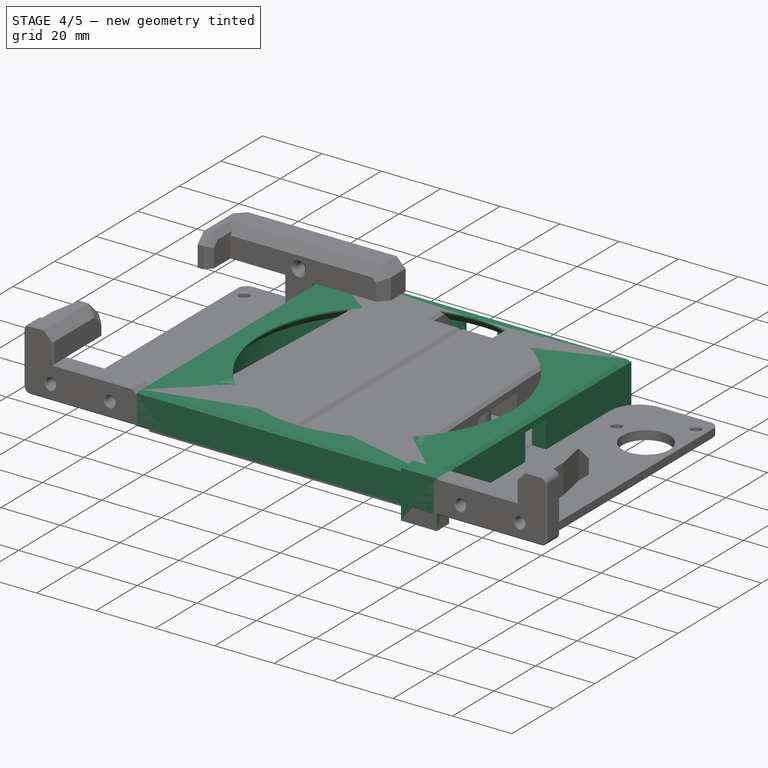
[diagram: stage 4 of 5 — iso view after this stage's code; geometry added in this stage tinted green]
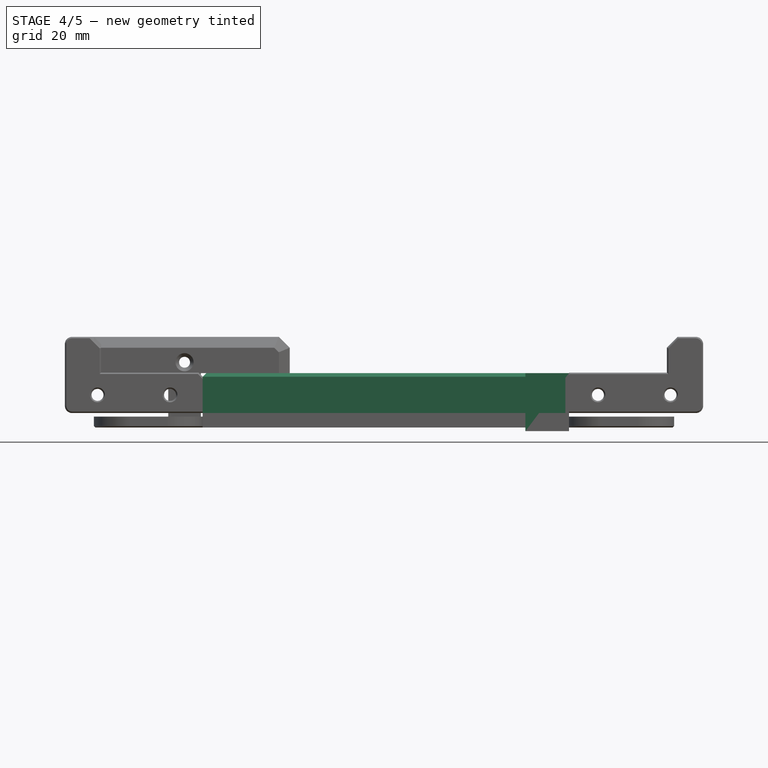
[diagram: stage 4 of 5 — front view after this stage's code; geometry added in this stage tinted green]
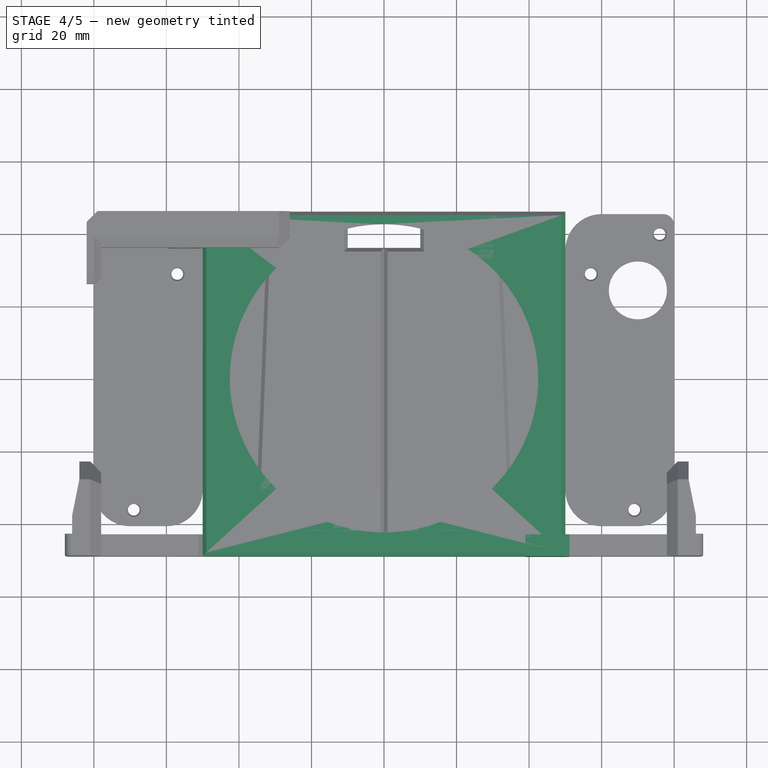
[diagram: stage 4 of 5 — top view after this stage's code; geometry added in this stage tinted green]
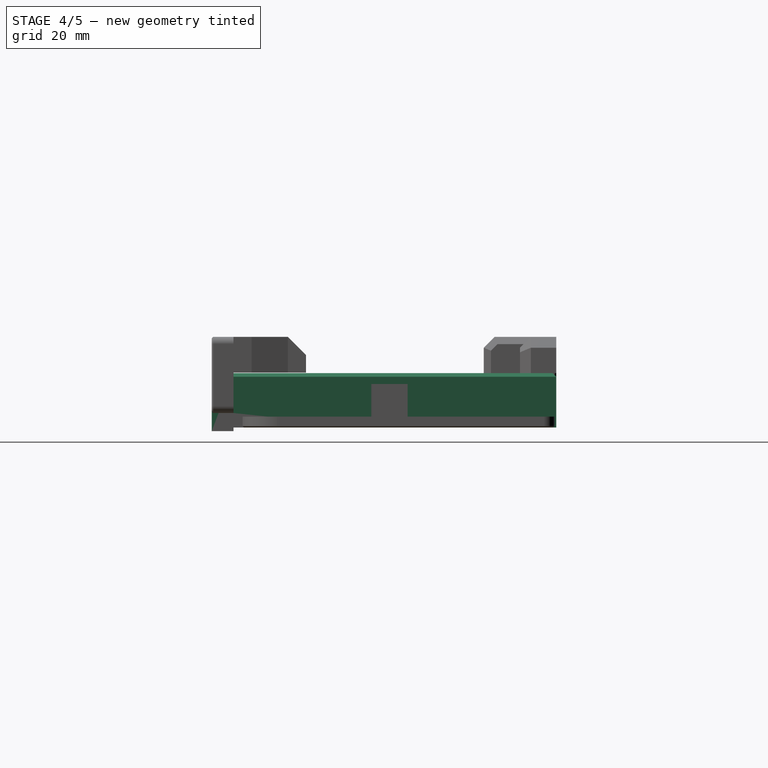
[diagram: stage 4 of 5 — right view after this stage's code; geometry added in this stage tinted green]
FEATURE [Part::Cylinder] Cylinder
  Angle = 360
  AttacherType = Attacher::AttachEngine3D
  Height = 15
  Radius = 45.5
FEATURE [Part::Cylinder] Cylinder002
  Angle = 360
  AttacherType = Attacher::AttachEngine3D
  Height = 21
  Radius = 42.5
FEATURE [Part::Chamfer] Chamfer
  Base = -> Cylinder
  Edges = 1 edges r=3.5: [Edge1]
FEATURE [Part::Cylinder] Cylinder004
  Angle = 360
  AttacherType = Attacher::AttachEngine3D
  Height = 15
  Radius = 46
FEATURE [Part::Box] Box  label="Cube"
  AttacherType = Attacher::AttachEngine3D
  Height = 0.75
  Length = 11
  Placement = pos=(-5.5,40,0) rot=(0,0,1;0rad)
  Width = 15
FEATURE [Part::Box] Box001  label="Cube001"
  AttacherType = Attacher::AttachEngine3D
  Height = 0.75
  Length = 11
  Placement = pos=(-5.5,-55,0) rot=(0,0,1;0rad)
  Width = 15
FEATURE [Part::Box] Box002  label="Cube002"
  AttacherType = Attacher::AttachEngine3D
  Height = 0.75
  Length = 15
  Placement = pos=(40,-5.5,0) rot=(0,0,1;0rad)
  Width = 11
FEATURE [Part::Box] Box003  label="Cube003"
  AttacherType = Attacher::AttachEngine3D
  Height = 0.75
  Length = 15
  Placement = pos=(-55,-5.5,0) rot=(0,0,1;0rad)
  Width = 11
FEATURE [Part::Box] Box004  label="Cube004"
  AttacherType = Attacher::AttachEngine3D
  Height = 11.5
  Length = 10
  Placement = pos=(-50,-5.5,0) rot=(0,0,1;0rad)
  Width = 11
FEATURE [Part::Box] Box005  label="Cube005"
  AttacherType = Attacher::AttachEngine3D
  Height = 11.5
  Length = 10
  Placement = pos=(40,-5.5,0) rot=(0,0,1;0rad)
  Width = 11
FEATURE [Part::Box] Box006  label="Cube006"
  AttacherType = Attacher::AttachEngine3D
  Height = 11.5
  Length = 11
  Placement = pos=(-5.5,-50,0) rot=(0,0,1;0rad)
  Width = 10
FEATURE [Part::Box] Box007  label="Cube007"
  AttacherType = Attacher::AttachEngine3D
  Height = 11.5
  Length = 11
  Placement = pos=(-5.5,40,0) rot=(0,0,1;0rad)
  Width = 10
FEATURE [Part::MultiFuse] Fusion002003
  Placement = pos=(0,0,0) rot=(0,0,-1;0.785398rad)
  Shapes = -> [Box003,Box,Box001,Box002]
FEATURE [Part::MultiFuse] Fusion002004
  Shapes = -> [Box007,Box004,Box005,Box006]
FEATURE [Part::MultiCommon] Common
  Placement = pos=(0,0,0) rot=(0,0,-1;0.785398rad)
  Shapes = -> [Cylinder004,Fusion002004]
FEATURE [Part::Box] Box015  label="Cube015"
  AttacherType = Attacher::AttachEngine3D
  Height = 15
  Length = 100
  Placement = pos=(-50,-43,0) rot=(0,0,1;0rad)
  Width = 89
FEATURE [Part::Box] Box016  label="Cube016"
  AttacherType = Attacher::AttachEngine3D
  Height = 11
  Length = 100
  Placement = pos=(-50,-49,4) rot=(0,0,1;0rad)
  Width = 6
FEATURE [Spreadsheet::Sheet] Spreadsheet  label="args"
FEATURE [Part::MultiFuse] Fusion002003004
  Refine = true
  Shapes = -> [Box015,Box016]
FEATURE [Part::MultiFuse] Fusion
  Shapes = -> [Fusion002003,Common,Chamfer,Cylinder002]
FEATURE [Part::Fillet] Fillet
  Base = -> Fusion
  Edges = 5 edges r=2: [Edge57,Edge59,Edge73,Edge85,Edge96]
FEATURE [Part::Cut] Cut
  Base = -> Fusion002003004
  Tool = -> Fillet
FEATURE [Part::Box] Box017  label="Cube017"
  AttacherType = Attacher::AttachEngine3D
  Height = 11.5
  Length = 11
  Placement = pos=(-5.5,40,0) rot=(0,0,1;0rad)
  Width = 10
FEATURE [Part::Box] Box018  label="Cube018"
  AttacherType = Attacher::AttachEngine3D
  Height = 12
  Length = 17
  Placement = pos=(40,-5,0) rot=(0,0,1;0rad)
  Width = 10
FEATURE [Part::MultiFuse] Fusion002003005
  Shapes = -> [Box017,Box018]
FEATURE [Part::Cut] Cut001
  Base = -> Cut
  Tool = -> Fusion002003005
FEATURE [Part::Box] Box021  label="Cube021"
  AttacherType = Attacher::AttachEngine3D
  Height = 16
  Length = 12
  Placement = pos=(39,-49,-1) rot=(0,0,1;0rad)
  Width = 6
FEATURE [Part::Chamfer] Chamfer006
  Base = -> Cut001
  Edges = 4 edges r=1: [Edge7,Edge43,Edge48,Edge49]
FEATURE [Part::Cylinder] Cylinder009
  Angle = 360
  AttacherType = Attacher::AttachEngine3D
  Height = 7
  Placement = pos=(44,-27,0) rot=(0,0,1;0rad)
  Radius = 2
FEATURE [Part::Cylinder] Cylinder010
  Angle = 360
  AttacherType = Attacher::AttachEngine3D
  Height = 7
  Placement = pos=(-44,-27,0) rot=(0,0,1;0rad)
  Radius = 2
FEATURE [Part::MultiFuse] Fusion002003010
  Shapes = -> [Cylinder012,Cylinder011,Cylinder010,Cylinder009]
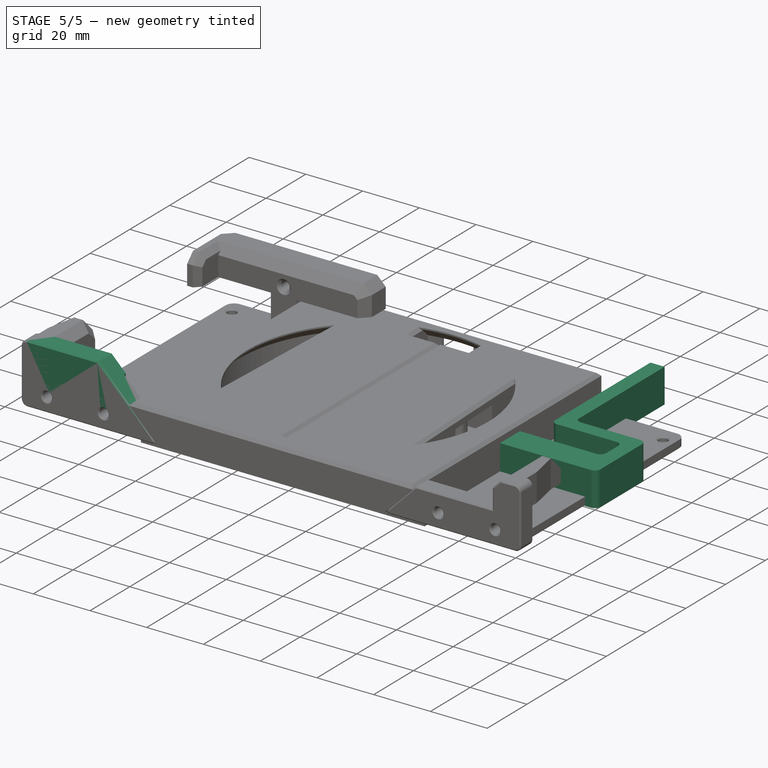
[diagram: stage 5 of 5 — iso view after this stage's code; geometry added in this stage tinted green]
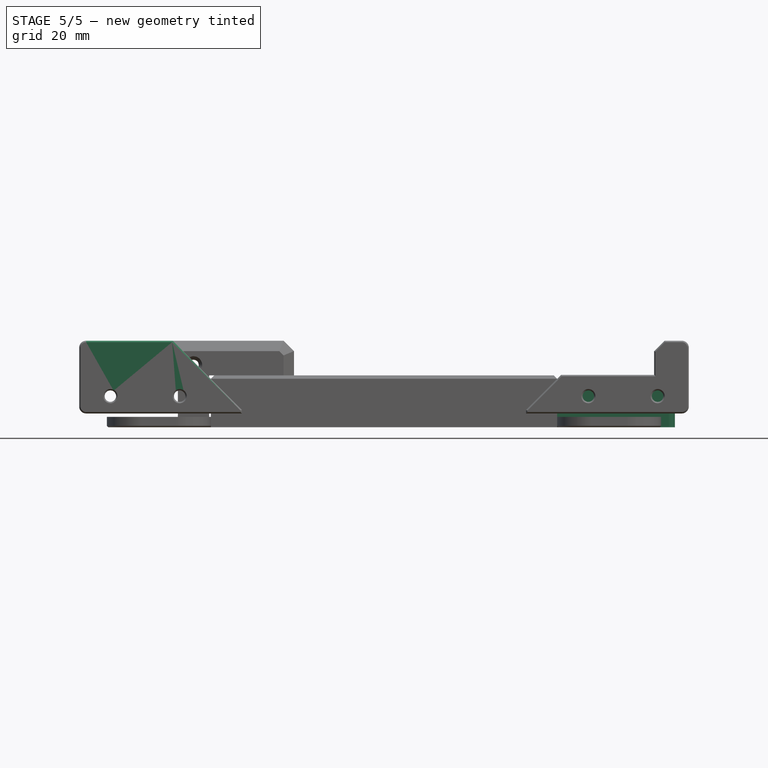
[diagram: stage 5 of 5 — front view after this stage's code; geometry added in this stage tinted green]
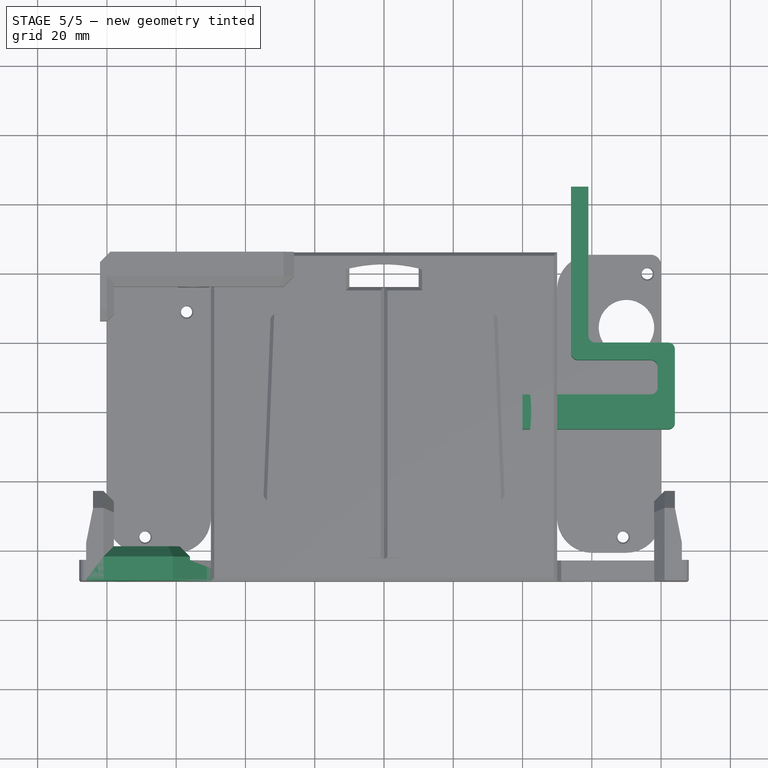
[diagram: stage 5 of 5 — top view after this stage's code; geometry added in this stage tinted green]
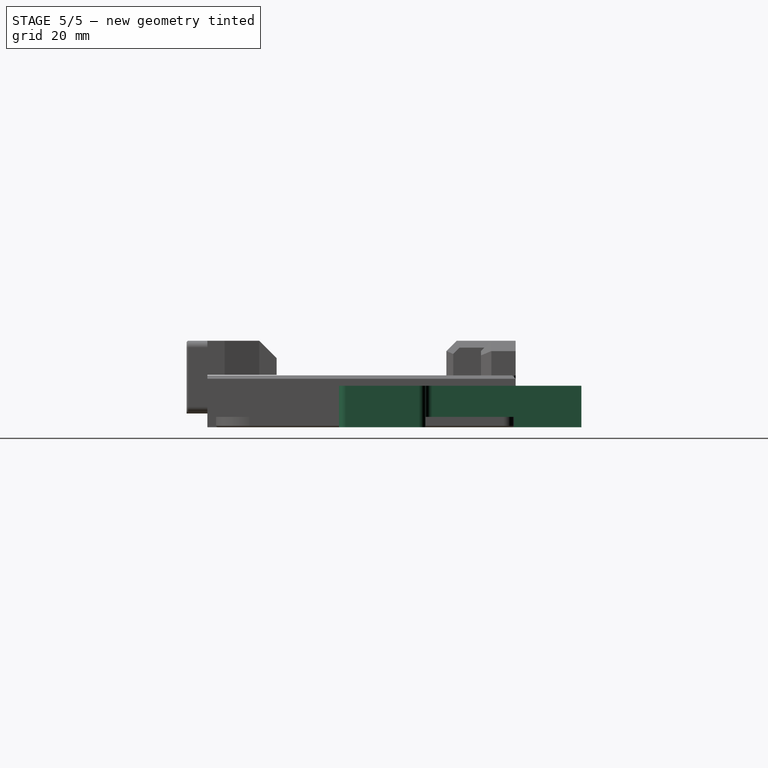
[diagram: stage 5 of 5 — right view after this stage's code; geometry added in this stage tinted green]
FEATURE [Part::Box] Box008  label="Cube008"
  AttacherType = Attacher::AttachEngine3D
  Height = 12
  Length = 44
  Placement = pos=(40,-5,0) rot=(0,0,1;0rad)
  Width = 10
FEATURE [Part::Box] Box009  label="Cube009"
  AttacherType = Attacher::AttachEngine3D
  Height = 12
  Length = 5
  Placement = pos=(79,-5,0) rot=(0,0,1;0rad)
  Width = 25
FEATURE [Part::Box] Box010  label="Cube010"
  AttacherType = Attacher::AttachEngine3D
  Height = 12
  Length = 30
  Placement = pos=(54,15,0) rot=(0,0,1;0rad)
  Width = 5
FEATURE [Part::Box] Box011  label="Cube011"
  AttacherType = Attacher::AttachEngine3D
  Height = 12
  Length = 5
  Placement = pos=(54,15,0) rot=(0,0,1;0rad)
  Width = 50
FEATURE [Part::MultiFuse] Fusion002006
  Refine = true
  Shapes = -> [Box011,Box010,Box009,Box008]
FEATURE [Part::Fillet] Fillet001
  Base = -> Fusion002006
  Edges = 6 edges r=2: [Edge2,Edge4,Edge13,Edge20,Edge29,Edge30]
FEATURE [Part::Box] Box020  label="Cube020"
  AttacherType = Attacher::AttachEngine3D
  Height = 16
  Length = 12
  Placement = pos=(-51,-49,-1) rot=(0,0,1;0rad)
  Width = 6
FEATURE [Part::Chamfer] Chamfer004
  Base = -> Box020
  Edges = 1 edges r=11: [Edge6]
  Placement = pos=(-1,0,0) rot=(0,0,1;0rad)
FEATURE [Part::Chamfer] Chamfer005
  Base = -> Box021
  Edges = 1 edges r=11: [Edge2]
  Placement = pos=(1,0,0) rot=(0,0,1;0rad)
FEATURE [Part::MultiFuse] Fusion002003006
  Shapes = -> [Chamfer004,Chamfer005]
FEATURE [Part::Cut] Cut002
  Base = -> Chamfer006
  Refine = true
  Tool = -> Fusion002003006
FEATURE [Part::Box] Box022  label="Cube022"
  AttacherType = Attacher::AttachEngine3D
  Height = 21
  Length = 47
  Placement = pos=(-88,-49,4) rot=(0,0,1;0rad)
  Width = 6
FEATURE [Part::Box] Box024  label="Cube024"
  AttacherType = Attacher::AttachEngine3D
  Height = 9.85
  Length = 6
  Placement = pos=(-84,-43,15.15) rot=(0,0,1;0rad)
  Width = 20
FEATURE [Part::Box] Box026  label="Cube026"
  AttacherType = Attacher::AttachEngine3D
  Height = 9.85
  Length = 27
  Placement = pos=(-83,-43,15.15) rot=(0,0,1;0rad)
  Width = 4
FEATURE [Part::Chamfer] Chamfer008
  Base = -> Box022
  Edges = 1 edges r=20: [Edge6]
FEATURE [Part::Fillet] Fillet004
  Base = -> Chamfer008
  Edges = 2 edges r=2: [Edge11,Edge15]
FEATURE [Part::Chamfer] Chamfer009
  Base = -> Fillet004
  Edges = 7 edges r=0.4: [Edge1,Edge2,Edge3,Edge4,Edge5,Edge6,Edge7]
FEATURE [Part::Chamfer] Chamfer010
  Base = -> Box026
  Edges = 1 edges r=5: [Edge6]
FEATURE [Part::Chamfer] Chamfer011
  Base = -> Chamfer010
  Edges = 3 edges r=3: [Edge3,Edge9,Edge14]
FEATURE [Part::Box] Box027  label="Cube027"
  AttacherType = Attacher::AttachEngine3D
  Height = 9.85
  Length = 4
  Placement = pos=(-86,-43,15.15) rot=(0,0,1;0rad)
  Width = 15
FEATURE [Part::Chamfer] Chamfer015
  Base = -> Box024
  Edges = 1 edges r=5: [Edge12]
FEATURE [Part::Chamfer] Chamfer016
  Base = -> Chamfer015
  Edges = 3 edges r=3: [Edge7,Edge10,Edge13]
FEATURE [Part::Chamfer] Chamfer017
  Base = -> Box027
  Edges = 1 edges: [Edge3 r1=10 r2=2]
FEATURE [Part::MultiFuse] Fusion002003007
  Refine = true
  Shapes = -> [Chamfer009,Chamfer017,Chamfer016,Chamfer011]
FEATURE [Part::Cylinder] Cylinder007
  Angle = 360
  AttacherType = Attacher::AttachEngine3D
  Height = 15
  Placement = pos=(-59,-36,9) rot=(1,0,0;1.5708rad)
  Radius = 1.65
FEATURE [Part::Cylinder] Cylinder008
  Angle = 360
  AttacherType = Attacher::AttachEngine3D
  Height = 15
  Placement = pos=(-79,-36,9) rot=(1,0,0;1.5708rad)
  Radius = 1.65
FEATURE [Part::MultiFuse] Fusion002003009
  Shapes = -> [Cylinder008,Cylinder007]
FEATURE [Part::Cut] Cut004
  Base = -> Fusion002003007
  Tool = -> Fusion002003009
FEATURE [Part::Chamfer] Chamfer018  label="wing"
  Base = -> Cut004
  Edges = 2 edges r=0.4: [Edge67,Edge68]
FEATURE [Part::Cut] Cut005
  Base = -> Cut002
  Tool = -> Fusion002003010
FEATURE [Part::Chamfer] Chamfer019  label="center"
  Base = -> Cut005
  Edges = 4 edges r=0.4: [Edge23,Edge41,Edge42,Edge66]
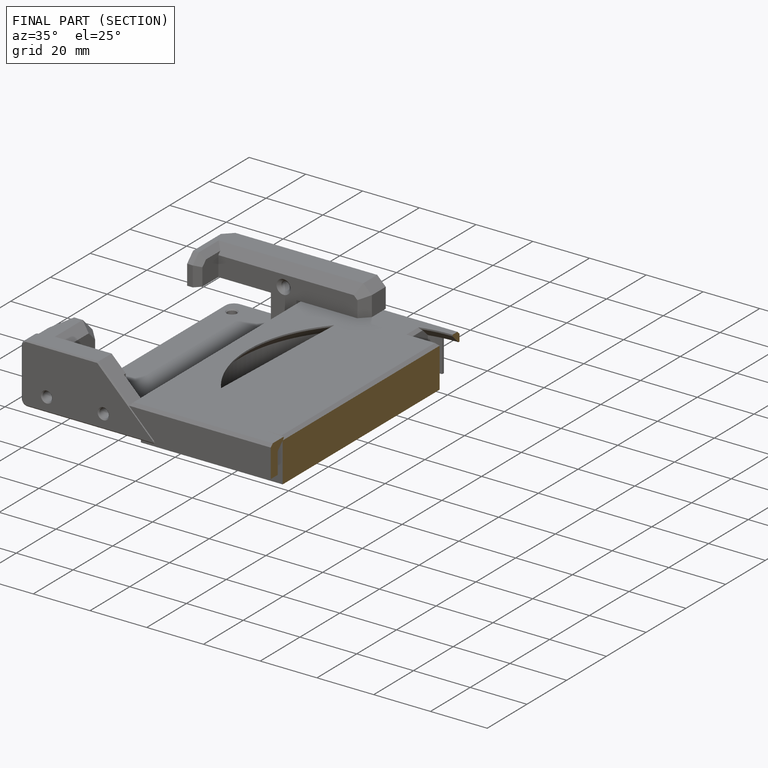
[diagram: finished part — half-section view (interior)]
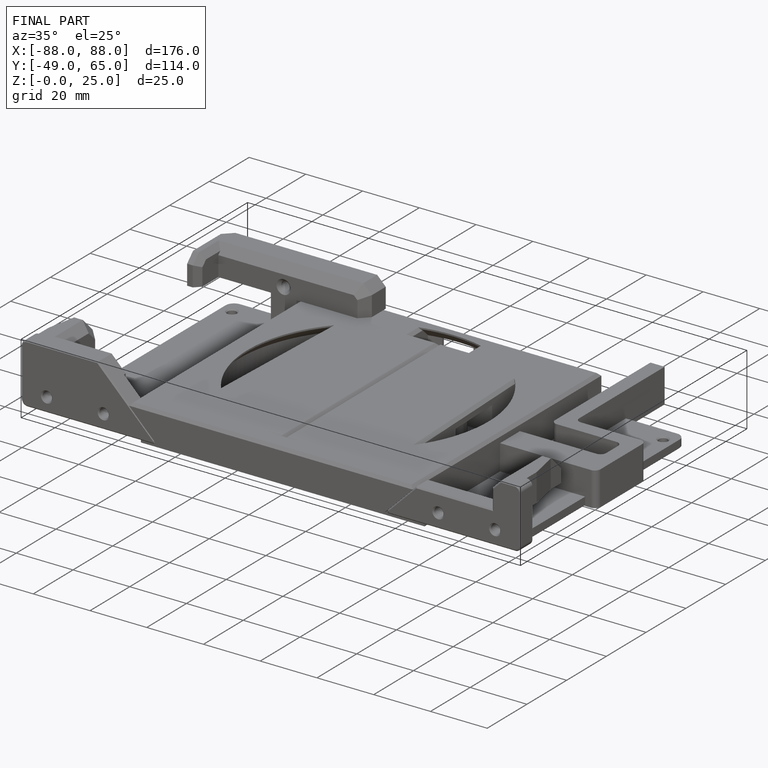
[diagram: finished part — iso view with bounding-box wireframe]
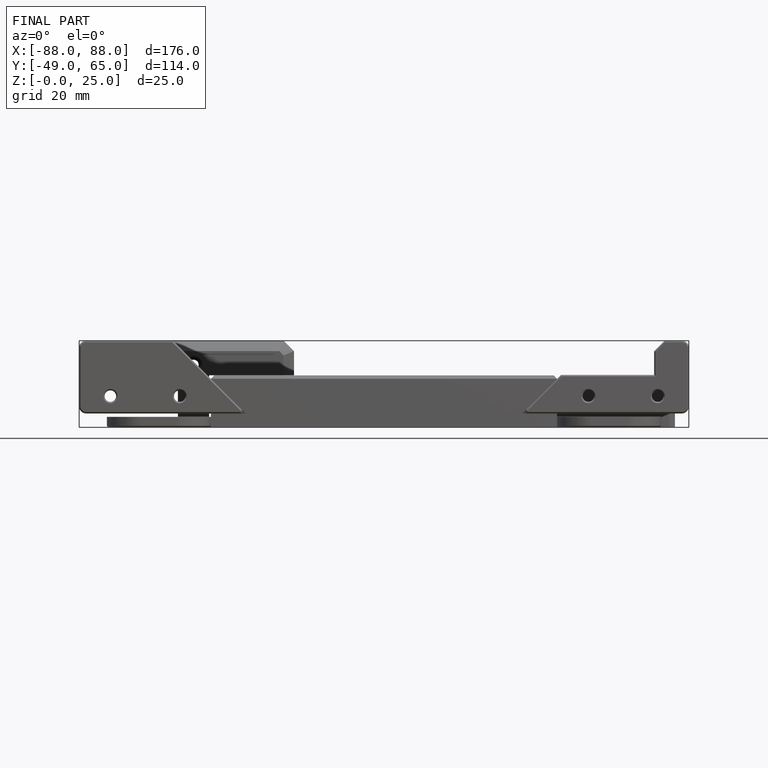
[diagram: finished part — front view with bounding-box wireframe]
